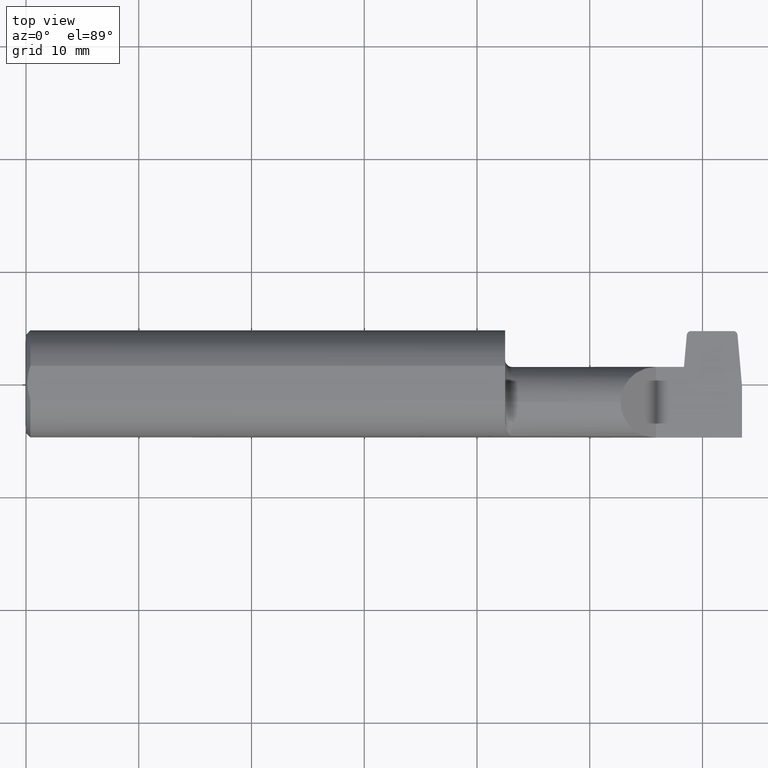
[diagram: clean part render]
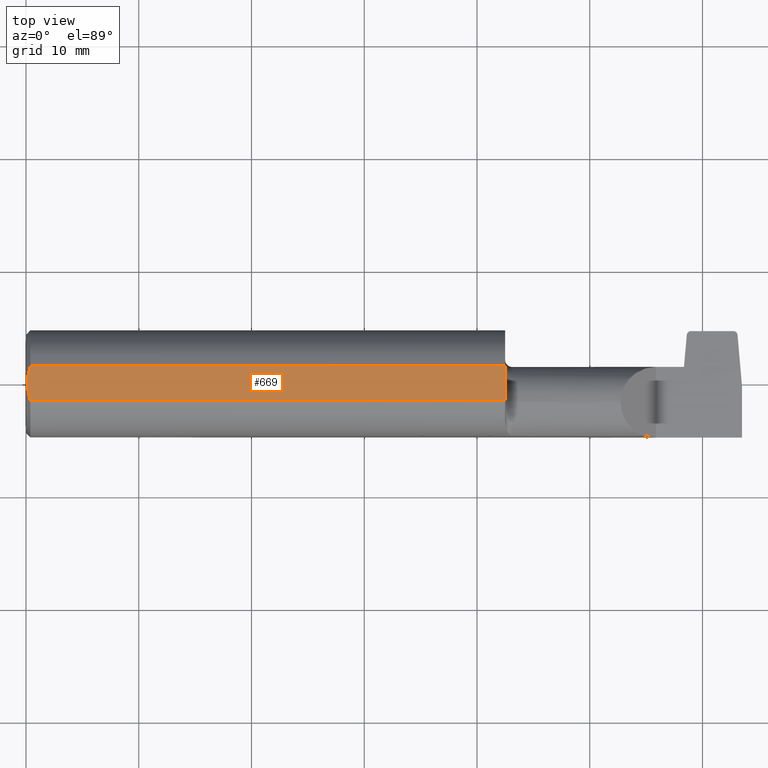
[diagram: same view with one face highlighted and labeled with its STEP entity id]
A machine part, top view. The second image highlights one B-rep face of the part: STEP entity #669.
In plain terms, the highlighted planar face has unit normal (-0, 0, -1).
Its self-contained STEP definition (entity closure, byte-faithful):
#17 = VERTEX_POINT ( 'NONE', #591 ) ;
#61 = EDGE_CURVE ( 'NONE', #163, #865, #557, .T. ) ;
#72 = DIRECTION ( 'NONE',  ( -1.000000000000000000, 0.000000000000000000, 0.000000000000000000 ) ) ;
#75 = ORIENTED_EDGE ( 'NONE', *, *, #301, .F. ) ;
#83 = CARTESIAN_POINT ( 'NONE',  ( 1.673000000000000265, 0.1000000000000000056, 0.1773499999999999799 ) ) ;
#162 = EDGE_CURVE ( 'NONE', #17, #838, #464, .T. ) ;
#163 = VERTEX_POINT ( 'NONE', #405 ) ;
#166 = CARTESIAN_POINT ( 'NONE',  ( 0.004999999999999614995, -0.02074845265125293409, 0.1773499999999999799 ) ) ;
#167 = VECTOR ( 'NONE', #706, 39.37007874015748143 ) ;
#224 = LINE ( 'NONE', #83, #358 ) ;
#228 = FACE_OUTER_BOUND ( 'NONE', #456, .T. ) ;
#231 = EDGE_CURVE ( 'NONE', #163, #377, #743, .T. ) ;
#283 = ORIENTED_EDGE ( 'NONE', *, *, #162, .F. ) ;
#300 = PLANE ( 'NONE',  #699 ) ;
#301 = EDGE_CURVE ( 'NONE', #865, #17, #224, .T. ) ;
#326 = CARTESIAN_POINT ( 'NONE',  ( 1.673000000000000265, 0.06039039658753697637, 0.1773499999999999799 ) ) ;
#330 = CARTESIAN_POINT ( 'NONE',  ( 0.004999999999999616730, 2.171911098286967231E-17, 0.1773499999999999799 ) ) ;
#339 = CARTESIAN_POINT ( 'NONE',  ( 0.01499999999999283677, -0.06039039658755173540, 0.1773499999999999799 ) ) ;
#358 = VECTOR ( 'NONE', #862, 39.37007874015748143 ) ;
#372 = ORIENTED_EDGE ( 'NONE', *, *, #61, .F. ) ;
#377 = VERTEX_POINT ( 'NONE', #727 ) ;
#404 = B_SPLINE_CURVE_WITH_KNOTS ( 'NONE', 3,
 ( #330, #166, #564, #339 ),
 .UNSPECIFIED., .F., .F.,
 ( 4, 4 ),
 ( 0.005540749947065447094, 0.007089657205383099493 ),
 .UNSPECIFIED. ) ;
#405 = CARTESIAN_POINT ( 'NONE',  ( 0.01499999999999970281, 0.06039039658753697637, 0.1773499999999999799 ) ) ;
#406 = ORIENTED_EDGE ( 'NONE', *, *, #231, .T. ) ;
#423 = EDGE_CURVE ( 'NONE', #377, #838, #404, .T. ) ;
#456 = EDGE_LOOP ( 'NONE', ( #75, #372, #406, #481, #283 ) ) ;
#464 = LINE ( 'NONE', #690, #692 ) ;
#481 = ORIENTED_EDGE ( 'NONE', *, *, #423, .T. ) ;
#540 = CARTESIAN_POINT ( 'NONE',  ( 0.000000000000000000, 0.1000000000000000056, 0.1773499999999999799 ) ) ;
#546 = DIRECTION ( 'NONE',  ( -1.000000000000000000, -0.000000000000000000, -0.000000000000000000 ) ) ;
#553 = CARTESIAN_POINT ( 'NONE',  ( 2.500000000000000000, 0.06039039658753697637, 0.1773499999999999799 ) ) ;
#557 = LINE ( 'NONE', #553, #167 ) ;
#564 = CARTESIAN_POINT ( 'NONE',  ( 0.008696589530555643918, -0.04083523520126733364, 0.1773499999999999799 ) ) ;
#591 = CARTESIAN_POINT ( 'NONE',  ( 1.673000000000000265, -0.06039039658755174234, 0.1773499999999999799 ) ) ;
#669 = ADVANCED_FACE ( 'NONE', ( #228 ), #300, .F. ) ;
#690 = CARTESIAN_POINT ( 'NONE',  ( 2.500000000000000000, -0.06039039658753697637, 0.1773499999999999799 ) ) ;
#692 = VECTOR ( 'NONE', #546, 39.37007874015748143 ) ;
#699 = AXIS2_PLACEMENT_3D ( 'NONE', #540, #912, #72 ) ;
#706 = DIRECTION ( 'NONE',  ( 1.000000000000000000, 0.000000000000000000, 0.000000000000000000 ) ) ;
#727 = CARTESIAN_POINT ( 'NONE',  ( 0.004999999999999616730, 2.171911098286967231E-17, 0.1773499999999999799 ) ) ;
#739 = CARTESIAN_POINT ( 'NONE',  ( 0.01499999999999970281, 0.06039039658753697637, 0.1773499999999999799 ) ) ;
#743 = B_SPLINE_CURVE_WITH_KNOTS ( 'NONE', 3,
 ( #739, #751, #973, #833 ),
 .UNSPECIFIED., .F., .F.,
 ( 4, 4 ),
 ( 0.003992862456818215000, 0.005540749947065447094 ),
 .UNSPECIFIED. ) ;
#751 = CARTESIAN_POINT ( 'NONE',  ( 0.008685564003747099637, 0.04080103055012378188, 0.1773499999999999799 ) ) ;
#800 = CARTESIAN_POINT ( 'NONE',  ( 0.01499999999999283677, -0.06039039658755173540, 0.1773499999999999799 ) ) ;
#833 = CARTESIAN_POINT ( 'NONE',  ( 0.004999999999999616730, 2.171911098286967231E-17, 0.1773499999999999799 ) ) ;
#838 = VERTEX_POINT ( 'NONE', #800 ) ;
#862 = DIRECTION ( 'NONE',  ( 0.000000000000000000, -1.000000000000000000, 0.000000000000000000 ) ) ;
#865 = VERTEX_POINT ( 'NONE', #326 ) ;
#912 = DIRECTION ( 'NONE',  ( -0.000000000000000000, 0.000000000000000000, -1.000000000000000000 ) ) ;
#973 = CARTESIAN_POINT ( 'NONE',  ( 0.004999999999999614995, 0.02073479230495992379, 0.1773499999999999799 ) ) ;